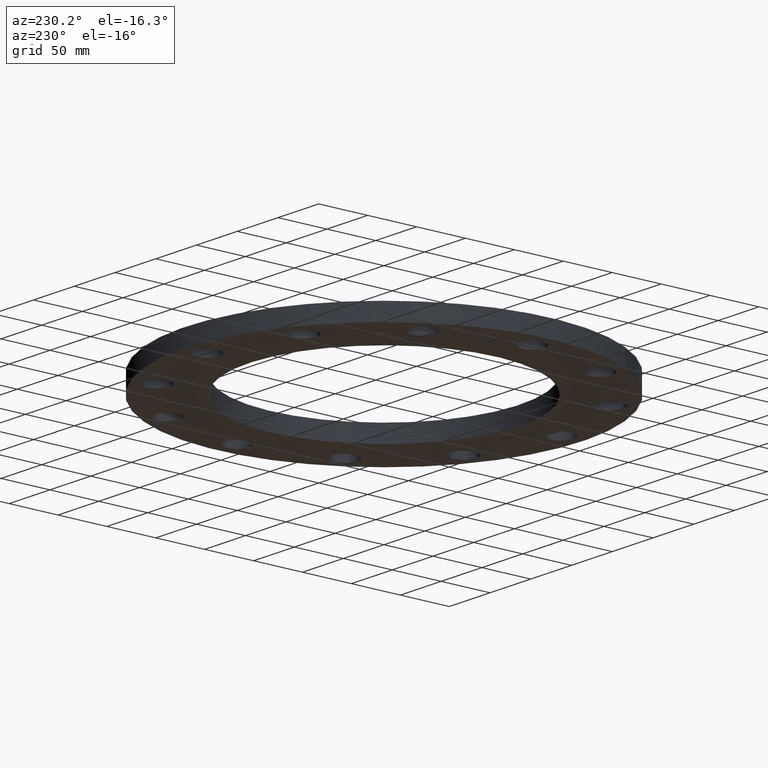
[diagram: clean part render]
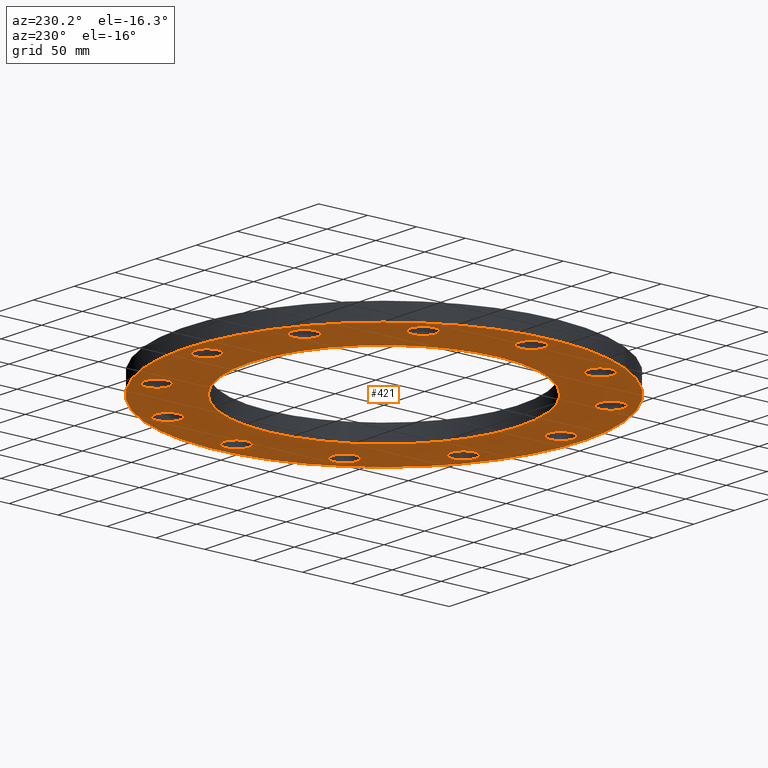
[diagram: same view with one face highlighted and labeled with its STEP entity id]
A machine part, auxiliary view. The second image highlights one B-rep face of the part: STEP entity #421.
In plain terms, the highlighted planar face has unit normal (0, 0, 1).
Its self-contained STEP definition (entity closure, byte-faithful):
#51=AXIS2_PLACEMENT_3D('Circle Axis2P3D',#49,#50,$) ;
#77=AXIS2_PLACEMENT_3D('Circle Axis2P3D',#75,#76,$) ;
#122=AXIS2_PLACEMENT_3D('Circle Axis2P3D',#120,#121,$) ;
#139=AXIS2_PLACEMENT_3D('Circle Axis2P3D',#137,#138,$) ;
#165=AXIS2_PLACEMENT_3D('Circle Axis2P3D',#163,#164,$) ;
#191=AXIS2_PLACEMENT_3D('Circle Axis2P3D',#189,#190,$) ;
#209=AXIS2_PLACEMENT_3D('Plane Axis2P3D',#206,#207,#208) ;
#225=AXIS2_PLACEMENT_3D('Circle Axis2P3D',#223,#224,$) ;
#234=AXIS2_PLACEMENT_3D('Circle Axis2P3D',#232,#233,$) ;
#243=AXIS2_PLACEMENT_3D('Circle Axis2P3D',#241,#242,$) ;
#252=AXIS2_PLACEMENT_3D('Circle Axis2P3D',#250,#251,$) ;
#261=AXIS2_PLACEMENT_3D('Circle Axis2P3D',#259,#260,$) ;
#270=AXIS2_PLACEMENT_3D('Circle Axis2P3D',#268,#269,$) ;
#279=AXIS2_PLACEMENT_3D('Circle Axis2P3D',#277,#278,$) ;
#288=AXIS2_PLACEMENT_3D('Circle Axis2P3D',#286,#287,$) ;
#297=AXIS2_PLACEMENT_3D('Circle Axis2P3D',#295,#296,$) ;
#306=AXIS2_PLACEMENT_3D('Circle Axis2P3D',#304,#305,$) ;
#315=AXIS2_PLACEMENT_3D('Circle Axis2P3D',#313,#314,$) ;
#324=AXIS2_PLACEMENT_3D('Circle Axis2P3D',#322,#323,$) ;
#333=AXIS2_PLACEMENT_3D('Circle Axis2P3D',#331,#332,$) ;
#342=AXIS2_PLACEMENT_3D('Circle Axis2P3D',#340,#341,$) ;
#351=AXIS2_PLACEMENT_3D('Circle Axis2P3D',#349,#350,$) ;
#360=AXIS2_PLACEMENT_3D('Circle Axis2P3D',#358,#359,$) ;
#369=AXIS2_PLACEMENT_3D('Circle Axis2P3D',#367,#368,$) ;
#378=AXIS2_PLACEMENT_3D('Circle Axis2P3D',#376,#377,$) ;
#387=AXIS2_PLACEMENT_3D('Circle Axis2P3D',#385,#386,$) ;
#396=AXIS2_PLACEMENT_3D('Circle Axis2P3D',#394,#395,$) ;
#405=AXIS2_PLACEMENT_3D('Circle Axis2P3D',#403,#404,$) ;
#414=AXIS2_PLACEMENT_3D('Circle Axis2P3D',#412,#413,$) ;
#44=CARTESIAN_POINT('Vertex',(6.68620871908,0.239712769303,0.)) ;
#49=CARTESIAN_POINT('Axis2P3D Location',(7.12500000003,0.,0.)) ;
#53=CARTESIAN_POINT('Vertex',(7.56379128098,-0.239712769303,0.)) ;
#75=CARTESIAN_POINT('Axis2P3D Location',(7.12500000003,0.,0.)) ;
#101=CARTESIAN_POINT('Vertex',(7.02066049515,3.83540430885,0.)) ;
#117=CARTESIAN_POINT('Vertex',(-7.02066049515,-3.83540430885,0.)) ;
#120=CARTESIAN_POINT('Axis2P3D Location',(0.,0.,0.)) ;
#137=CARTESIAN_POINT('Axis2P3D Location',(0.,0.,0.)) ;
#158=CARTESIAN_POINT('Vertex',(-4.7740491367,2.60807493002,0.)) ;
#163=CARTESIAN_POINT('Axis2P3D Location',(-6.64385432059E-016,-2.09805925913E-016,0.)) ;
#167=CARTESIAN_POINT('Vertex',(4.7740491367,-2.60807493002,0.)) ;
#189=CARTESIAN_POINT('Axis2P3D Location',(-6.64385432059E-016,-2.09805925913E-016,0.)) ;
#206=CARTESIAN_POINT('Axis2P3D Location',(0.,0.,0.)) ;
#223=CARTESIAN_POINT('Axis2P3D Location',(6.17043100199,3.56250000001,0.)) ;
#227=CARTESIAN_POINT('Vertex',(5.67057022108,3.55070170737,0.)) ;
#229=CARTESIAN_POINT('Vertex',(6.6702917829,3.57429829266,0.)) ;
#232=CARTESIAN_POINT('Axis2P3D Location',(6.17043100199,3.56250000001,0.)) ;
#241=CARTESIAN_POINT('Axis2P3D Location',(3.56250000001,6.17043100199,0.)) ;
#245=CARTESIAN_POINT('Vertex',(3.13550701171,5.91028299038,0.)) ;
#247=CARTESIAN_POINT('Vertex',(3.98949298832,6.4305790136,0.)) ;
#250=CARTESIAN_POINT('Axis2P3D Location',(3.56250000001,6.17043100199,0.)) ;
#259=CARTESIAN_POINT('Axis2P3D Location',(-2.09805925913E-016,7.12500000003,0.)) ;
#263=CARTESIAN_POINT('Vertex',(-0.239712769303,6.68620871908,0.)) ;
#265=CARTESIAN_POINT('Vertex',(0.239712769303,7.56379128098,0.)) ;
#268=CARTESIAN_POINT('Axis2P3D Location',(-8.39223703654E-016,7.12500000003,0.)) ;
#277=CARTESIAN_POINT('Axis2P3D Location',(-3.56250000001,6.17043100199,0.)) ;
#281=CARTESIAN_POINT('Vertex',(-3.55070170737,5.67057022108,0.)) ;
#283=CARTESIAN_POINT('Vertex',(-3.57429829266,6.6702917829,0.)) ;
#286=CARTESIAN_POINT('Axis2P3D Location',(-3.56250000001,6.17043100199,0.)) ;
#295=CARTESIAN_POINT('Axis2P3D Location',(-6.17043100199,3.56250000001,0.)) ;
#299=CARTESIAN_POINT('Vertex',(-5.91028299038,3.13550701171,0.)) ;
#301=CARTESIAN_POINT('Vertex',(-6.4305790136,3.98949298832,0.)) ;
#304=CARTESIAN_POINT('Axis2P3D Location',(-6.17043100199,3.56250000001,0.)) ;
#313=CARTESIAN_POINT('Axis2P3D Location',(-7.12500000003,5.59482469102E-016,0.)) ;
#317=CARTESIAN_POINT('Vertex',(-6.68620871908,-0.239712769303,0.)) ;
#319=CARTESIAN_POINT('Vertex',(-7.56379128098,0.239712769303,0.)) ;
#322=CARTESIAN_POINT('Axis2P3D Location',(-7.12500000003,1.1189649382E-015,0.)) ;
#331=CARTESIAN_POINT('Axis2P3D Location',(-6.17043100199,-3.56250000001,0.)) ;
#335=CARTESIAN_POINT('Vertex',(-5.67057022108,-3.55070170737,0.)) ;
#337=CARTESIAN_POINT('Vertex',(-6.6702917829,-3.57429829266,0.)) ;
#340=CARTESIAN_POINT('Axis2P3D Location',(-6.17043100199,-3.56250000001,0.)) ;
#349=CARTESIAN_POINT('Axis2P3D Location',(-3.56250000001,-6.17043100199,0.)) ;
#353=CARTESIAN_POINT('Vertex',(-3.13550701171,-5.91028299038,0.)) ;
#355=CARTESIAN_POINT('Vertex',(-3.98949298832,-6.4305790136,0.)) ;
#358=CARTESIAN_POINT('Axis2P3D Location',(-3.56250000001,-6.17043100199,0.)) ;
#367=CARTESIAN_POINT('Axis2P3D Location',(-1.81831802458E-015,-7.12500000003,0.)) ;
#371=CARTESIAN_POINT('Vertex',(0.239712769303,-6.68620871908,0.)) ;
#373=CARTESIAN_POINT('Vertex',(-0.239712769303,-7.56379128098,0.)) ;
#376=CARTESIAN_POINT('Axis2P3D Location',(-1.39870617276E-015,-7.12500000003,0.)) ;
#385=CARTESIAN_POINT('Axis2P3D Location',(3.56250000001,-6.17043100199,0.)) ;
#389=CARTESIAN_POINT('Vertex',(3.55070170737,-5.67057022108,0.)) ;
#391=CARTESIAN_POINT('Vertex',(3.57429829266,-6.6702917829,0.)) ;
#394=CARTESIAN_POINT('Axis2P3D Location',(3.56250000001,-6.17043100199,0.)) ;
#403=CARTESIAN_POINT('Axis2P3D Location',(6.17043100199,-3.56250000001,0.)) ;
#407=CARTESIAN_POINT('Vertex',(5.91028299038,-3.13550701171,0.)) ;
#409=CARTESIAN_POINT('Vertex',(6.4305790136,-3.98949298832,0.)) ;
#412=CARTESIAN_POINT('Axis2P3D Location',(6.17043100199,-3.56250000001,0.)) ;
#50=DIRECTION('Axis2P3D Direction',(0.,-0.,-0.0393700787402)) ;
#76=DIRECTION('Axis2P3D Direction',(0.,-0.,-0.0393700787402)) ;
#121=DIRECTION('Axis2P3D Direction',(0.,0.,0.0393700787402)) ;
#138=DIRECTION('Axis2P3D Direction',(0.,0.,0.0393700787402)) ;
#164=DIRECTION('Axis2P3D Direction',(0.,-0.,-0.0393700787402)) ;
#190=DIRECTION('Axis2P3D Direction',(0.,-0.,-0.0393700787402)) ;
#207=DIRECTION('Axis2P3D Direction',(0.,0.,0.0393700787402)) ;
#208=DIRECTION('Axis2P3D XDirection',(0.0393700787402,0.,0.)) ;
#224=DIRECTION('Axis2P3D Direction',(0.,0.,0.0393700787402)) ;
#233=DIRECTION('Axis2P3D Direction',(0.,0.,0.0393700787402)) ;
#242=DIRECTION('Axis2P3D Direction',(0.,0.,0.0393700787402)) ;
#251=DIRECTION('Axis2P3D Direction',(0.,0.,0.0393700787402)) ;
#260=DIRECTION('Axis2P3D Direction',(0.,0.,0.0393700787402)) ;
#269=DIRECTION('Axis2P3D Direction',(0.,0.,0.0393700787402)) ;
#278=DIRECTION('Axis2P3D Direction',(0.,0.,0.0393700787402)) ;
#287=DIRECTION('Axis2P3D Direction',(0.,0.,0.0393700787402)) ;
#296=DIRECTION('Axis2P3D Direction',(0.,0.,0.0393700787402)) ;
#305=DIRECTION('Axis2P3D Direction',(0.,0.,0.0393700787402)) ;
#314=DIRECTION('Axis2P3D Direction',(0.,0.,0.0393700787402)) ;
#323=DIRECTION('Axis2P3D Direction',(0.,0.,0.0393700787402)) ;
#332=DIRECTION('Axis2P3D Direction',(0.,0.,0.0393700787402)) ;
#341=DIRECTION('Axis2P3D Direction',(0.,0.,0.0393700787402)) ;
#350=DIRECTION('Axis2P3D Direction',(0.,0.,0.0393700787402)) ;
#359=DIRECTION('Axis2P3D Direction',(0.,0.,0.0393700787402)) ;
#368=DIRECTION('Axis2P3D Direction',(0.,0.,0.0393700787402)) ;
#377=DIRECTION('Axis2P3D Direction',(0.,0.,0.0393700787402)) ;
#386=DIRECTION('Axis2P3D Direction',(0.,0.,0.0393700787402)) ;
#395=DIRECTION('Axis2P3D Direction',(0.,0.,0.0393700787402)) ;
#404=DIRECTION('Axis2P3D Direction',(0.,0.,0.0393700787402)) ;
#413=DIRECTION('Axis2P3D Direction',(0.,0.,0.0393700787402)) ;
#212=ORIENTED_EDGE('',*,*,#124,.F.) ;
#213=ORIENTED_EDGE('',*,*,#141,.F.) ;
#216=ORIENTED_EDGE('',*,*,#55,.T.) ;
#217=ORIENTED_EDGE('',*,*,#79,.T.) ;
#220=ORIENTED_EDGE('',*,*,#169,.T.) ;
#221=ORIENTED_EDGE('',*,*,#193,.T.) ;
#238=ORIENTED_EDGE('',*,*,#231,.T.) ;
#239=ORIENTED_EDGE('',*,*,#236,.T.) ;
#256=ORIENTED_EDGE('',*,*,#249,.T.) ;
#257=ORIENTED_EDGE('',*,*,#254,.T.) ;
#274=ORIENTED_EDGE('',*,*,#267,.T.) ;
#275=ORIENTED_EDGE('',*,*,#272,.T.) ;
#292=ORIENTED_EDGE('',*,*,#285,.T.) ;
#293=ORIENTED_EDGE('',*,*,#290,.T.) ;
#310=ORIENTED_EDGE('',*,*,#303,.T.) ;
#311=ORIENTED_EDGE('',*,*,#308,.T.) ;
#328=ORIENTED_EDGE('',*,*,#321,.T.) ;
#329=ORIENTED_EDGE('',*,*,#326,.T.) ;
#346=ORIENTED_EDGE('',*,*,#339,.T.) ;
#347=ORIENTED_EDGE('',*,*,#344,.T.) ;
#364=ORIENTED_EDGE('',*,*,#357,.T.) ;
#365=ORIENTED_EDGE('',*,*,#362,.T.) ;
#382=ORIENTED_EDGE('',*,*,#375,.T.) ;
#383=ORIENTED_EDGE('',*,*,#380,.T.) ;
#400=ORIENTED_EDGE('',*,*,#393,.T.) ;
#401=ORIENTED_EDGE('',*,*,#398,.T.) ;
#418=ORIENTED_EDGE('',*,*,#411,.T.) ;
#419=ORIENTED_EDGE('',*,*,#416,.T.) ;
#218=FACE_BOUND('',#215,.T.) ;
#222=FACE_BOUND('',#219,.T.) ;
#240=FACE_BOUND('',#237,.T.) ;
#258=FACE_BOUND('',#255,.T.) ;
#276=FACE_BOUND('',#273,.T.) ;
#294=FACE_BOUND('',#291,.T.) ;
#312=FACE_BOUND('',#309,.T.) ;
#330=FACE_BOUND('',#327,.T.) ;
#348=FACE_BOUND('',#345,.T.) ;
#366=FACE_BOUND('',#363,.T.) ;
#384=FACE_BOUND('',#381,.T.) ;
#402=FACE_BOUND('',#399,.T.) ;
#420=FACE_BOUND('',#417,.T.) ;
#421=ADVANCED_FACE('PartBody',(#214,#218,#222,#240,#258,#276,#294,#312,#330,#348,#366,#384,#402,#420),#210,.F.) ;
#52=CIRCLE('generated circle',#51,0.500000000002) ;
#78=CIRCLE('generated circle',#77,0.500000000002) ;
#123=CIRCLE('generated circle',#122,8.00000000003) ;
#140=CIRCLE('generated circle',#139,8.00000000003) ;
#166=CIRCLE('generated circle',#165,5.44000000002) ;
#192=CIRCLE('generated circle',#191,5.44000000002) ;
#226=CIRCLE('generated circle',#225,0.500000000002) ;
#235=CIRCLE('generated circle',#234,0.500000000002) ;
#244=CIRCLE('generated circle',#243,0.500000000002) ;
#253=CIRCLE('generated circle',#252,0.500000000002) ;
#262=CIRCLE('generated circle',#261,0.500000000002) ;
#271=CIRCLE('generated circle',#270,0.500000000002) ;
#280=CIRCLE('generated circle',#279,0.500000000002) ;
#289=CIRCLE('generated circle',#288,0.500000000002) ;
#298=CIRCLE('generated circle',#297,0.500000000002) ;
#307=CIRCLE('generated circle',#306,0.500000000002) ;
#316=CIRCLE('generated circle',#315,0.500000000002) ;
#325=CIRCLE('generated circle',#324,0.500000000002) ;
#334=CIRCLE('generated circle',#333,0.500000000002) ;
#343=CIRCLE('generated circle',#342,0.500000000002) ;
#352=CIRCLE('generated circle',#351,0.500000000002) ;
#361=CIRCLE('generated circle',#360,0.500000000002) ;
#370=CIRCLE('generated circle',#369,0.500000000002) ;
#379=CIRCLE('generated circle',#378,0.500000000002) ;
#388=CIRCLE('generated circle',#387,0.500000000002) ;
#397=CIRCLE('generated circle',#396,0.500000000002) ;
#406=CIRCLE('generated circle',#405,0.500000000002) ;
#415=CIRCLE('generated circle',#414,0.500000000002) ;
#55=EDGE_CURVE('',#54,#45,#52,.F.) ;
#79=EDGE_CURVE('',#45,#54,#78,.F.) ;
#124=EDGE_CURVE('',#118,#102,#123,.T.) ;
#141=EDGE_CURVE('',#102,#118,#140,.T.) ;
#169=EDGE_CURVE('',#168,#159,#166,.F.) ;
#193=EDGE_CURVE('',#159,#168,#192,.F.) ;
#231=EDGE_CURVE('',#228,#230,#226,.T.) ;
#236=EDGE_CURVE('',#230,#228,#235,.T.) ;
#249=EDGE_CURVE('',#246,#248,#244,.T.) ;
#254=EDGE_CURVE('',#248,#246,#253,.T.) ;
#267=EDGE_CURVE('',#264,#266,#262,.T.) ;
#272=EDGE_CURVE('',#266,#264,#271,.T.) ;
#285=EDGE_CURVE('',#282,#284,#280,.T.) ;
#290=EDGE_CURVE('',#284,#282,#289,.T.) ;
#303=EDGE_CURVE('',#300,#302,#298,.T.) ;
#308=EDGE_CURVE('',#302,#300,#307,.T.) ;
#321=EDGE_CURVE('',#318,#320,#316,.T.) ;
#326=EDGE_CURVE('',#320,#318,#325,.T.) ;
#339=EDGE_CURVE('',#336,#338,#334,.T.) ;
#344=EDGE_CURVE('',#338,#336,#343,.T.) ;
#357=EDGE_CURVE('',#354,#356,#352,.T.) ;
#362=EDGE_CURVE('',#356,#354,#361,.T.) ;
#375=EDGE_CURVE('',#372,#374,#370,.T.) ;
#380=EDGE_CURVE('',#374,#372,#379,.T.) ;
#393=EDGE_CURVE('',#390,#392,#388,.T.) ;
#398=EDGE_CURVE('',#392,#390,#397,.T.) ;
#411=EDGE_CURVE('',#408,#410,#406,.T.) ;
#416=EDGE_CURVE('',#410,#408,#415,.T.) ;
#211=EDGE_LOOP('',(#212,#213)) ;
#215=EDGE_LOOP('',(#216,#217)) ;
#219=EDGE_LOOP('',(#220,#221)) ;
#237=EDGE_LOOP('',(#238,#239)) ;
#255=EDGE_LOOP('',(#256,#257)) ;
#273=EDGE_LOOP('',(#274,#275)) ;
#291=EDGE_LOOP('',(#292,#293)) ;
#309=EDGE_LOOP('',(#310,#311)) ;
#327=EDGE_LOOP('',(#328,#329)) ;
#345=EDGE_LOOP('',(#346,#347)) ;
#363=EDGE_LOOP('',(#364,#365)) ;
#381=EDGE_LOOP('',(#382,#383)) ;
#399=EDGE_LOOP('',(#400,#401)) ;
#417=EDGE_LOOP('',(#418,#419)) ;
#214=FACE_OUTER_BOUND('',#211,.T.) ;
#210=PLANE('',#209) ;
#45=VERTEX_POINT('',#44) ;
#54=VERTEX_POINT('',#53) ;
#102=VERTEX_POINT('',#101) ;
#118=VERTEX_POINT('',#117) ;
#159=VERTEX_POINT('',#158) ;
#168=VERTEX_POINT('',#167) ;
#228=VERTEX_POINT('',#227) ;
#230=VERTEX_POINT('',#229) ;
#246=VERTEX_POINT('',#245) ;
#248=VERTEX_POINT('',#247) ;
#264=VERTEX_POINT('',#263) ;
#266=VERTEX_POINT('',#265) ;
#282=VERTEX_POINT('',#281) ;
#284=VERTEX_POINT('',#283) ;
#300=VERTEX_POINT('',#299) ;
#302=VERTEX_POINT('',#301) ;
#318=VERTEX_POINT('',#317) ;
#320=VERTEX_POINT('',#319) ;
#336=VERTEX_POINT('',#335) ;
#338=VERTEX_POINT('',#337) ;
#354=VERTEX_POINT('',#353) ;
#356=VERTEX_POINT('',#355) ;
#372=VERTEX_POINT('',#371) ;
#374=VERTEX_POINT('',#373) ;
#390=VERTEX_POINT('',#389) ;
#392=VERTEX_POINT('',#391) ;
#408=VERTEX_POINT('',#407) ;
#410=VERTEX_POINT('',#409) ;